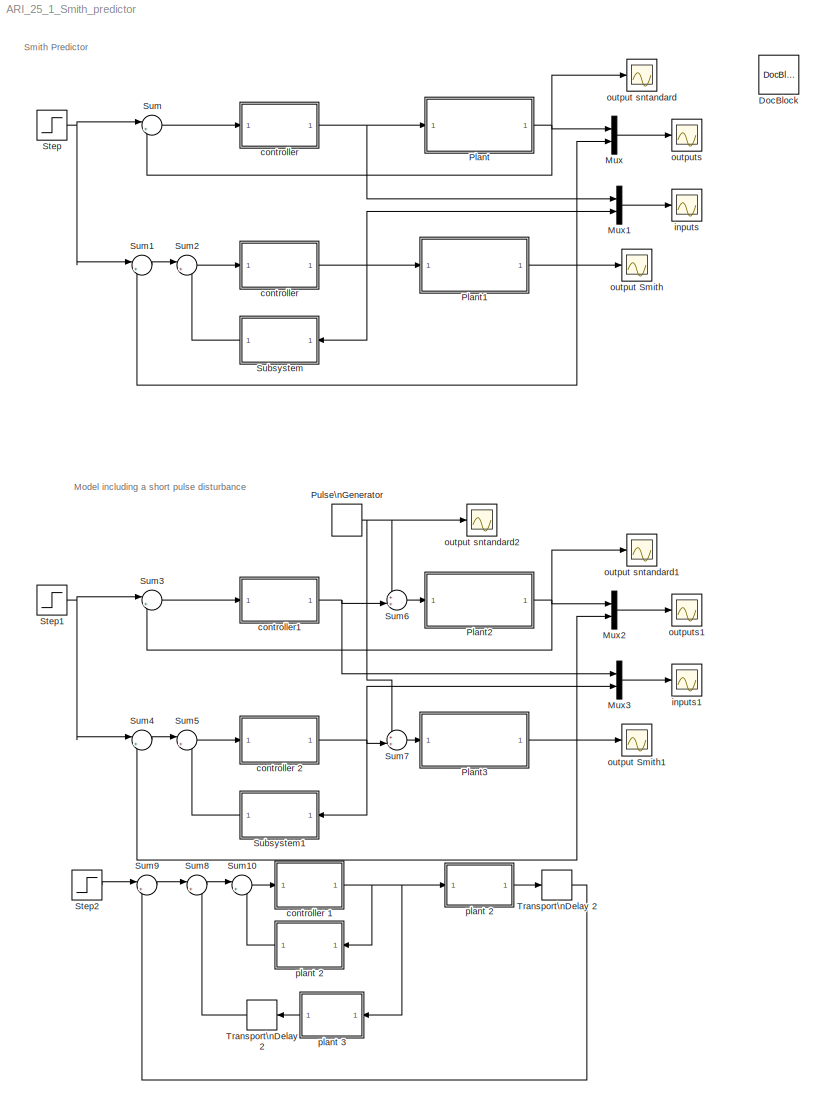
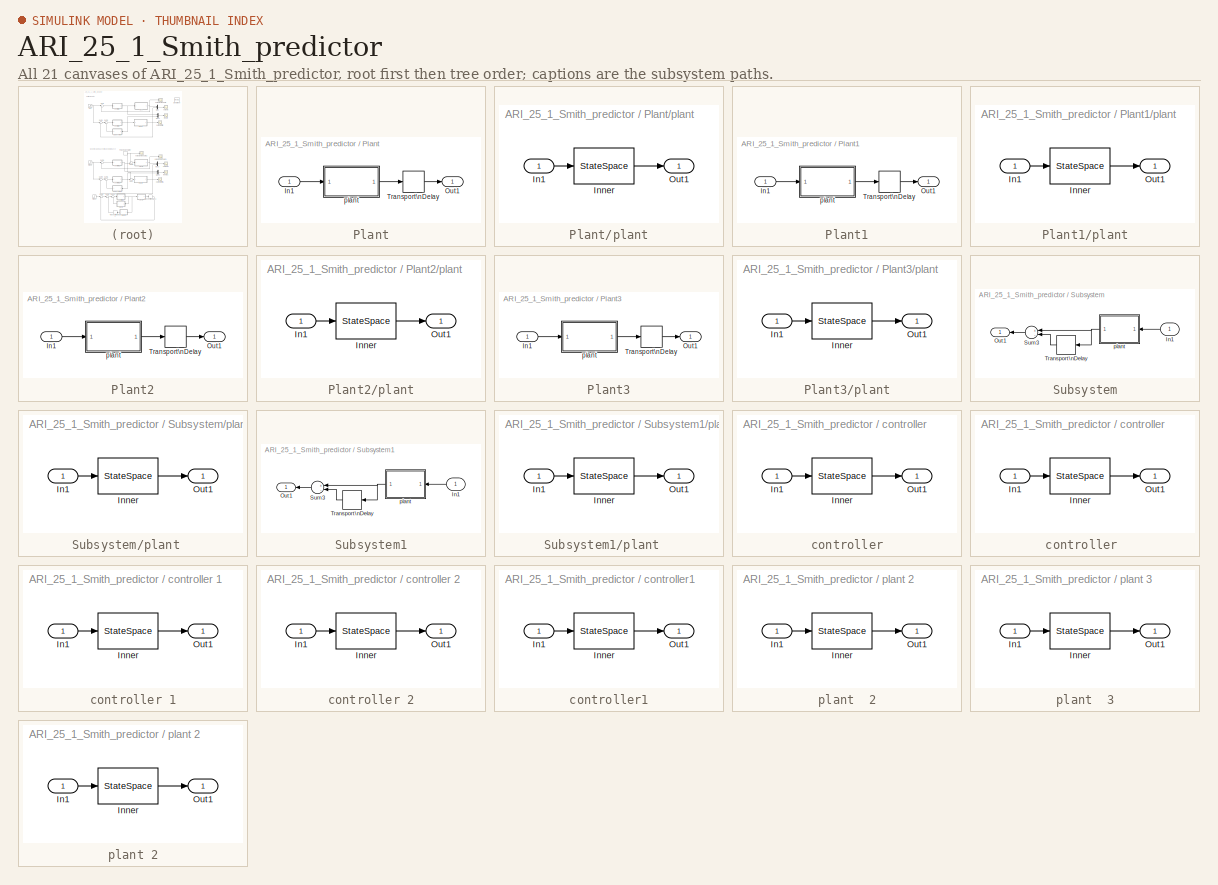
[diagram: thumbnail index - all 21 canvases of the model, root first then tree order]
MODEL ARI_25_1_Smith_predictor
KIND model
BLOCK [Reference] DocBlock  REF=simulink/Model-Wide\nUtilities/DocBlock
  DocumentType = Text
  Ports = []
  SID = 96
  SourceBlock = simulink/Model-Wide\nUtilities/DocBlock
  SourceType = DocBlock
  UserData = DataTag0
  UserDataPersistent = on
BLOCK [Mux] Mux
  DisplayOption = bar
  Inputs = 2
  Ports = [2, 1]
  SID = 1
BLOCK [Mux] Mux1
  DisplayOption = bar
  Inputs = 2
  Ports = [2, 1]
  SID = 121
BLOCK [Mux] Mux2
  DisplayOption = bar
  Inputs = 2
  Ports = [2, 1]
  SID = 136
BLOCK [Mux] Mux3
  DisplayOption = bar
  Inputs = 2
  Ports = [2, 1]
  SID = 137
BLOCK [SubSystem] Plant
  FunctionWithSeparateData = off
  MaskDisplay = disp('F(s)*exp(-s*tau)')
  MaskHideContents = off
  MaskIconFrame = on
  MaskIconOpaque = on
  MaskIconRotate = none
  MaskIconUnits = autoscale
  MaskPortRotate = default
  MinAlgLoopOccurrences = off
  Opaque = off
  Ports = [1, 1]
  PropExecContextOutsideSubsystem = off
  RTWSystemCode = Auto
  RequestExecContextInheritance = off
  SID = 74
BLOCK [Inport] Plant/In1
  IconDisplay = Port number
  SID = 76
BLOCK [Outport] Plant/Out1
  IconDisplay = Port number
  SID = 75
BLOCK [TransportDelay] Plant/Transport\nDelay
  DelayTime = tau
  Ports = [1, 1]
  SID = 20
BLOCK [SubSystem] Plant/plant
  FunctionWithSeparateData = off
  MaskCallbackString = |||
  MaskDescription = Polynomial matrix fraction description of a linear system.\n\nThis block represents a linear system defined by the polynomial matrix fraction of its transfer function.
  MaskDisplay = disp('F(s)')
  MaskEnableString = on,on,on,on
  MaskHelp = This block represents a linear system [<I>A,B,C,D</I>] defined by the polynomial matrix fraction (<I>PMF</I>) of its transfer function <I>T</I>.  \n<p>\n<b>Left Matrix Fraction</b> item of the popup menu <b>Type</b> indicates the transfer function in the form of <I>left PMF</I>:  \n<p>\n<I>T</I> = inv(<I>Q</I>) <I>P</I>.\n<p> \n<b>Right Matrix Fraction</b> item is used if the transfer function is ...<+1109ch>  <repeated x14 — deduplicated; at blocks: plant, controller, controller 1, controller 2, controller1, plant  2, plant  3, plant 2>
  MaskHideContents = off
  MaskIconFrame = on
  MaskIconOpaque = on
  MaskIconRotate = none
  MaskIconUnits = autoscale
  MaskInitialization = Label = 'xxx';\n[A,B,C,D,Label,var] = polymask2(F, fvar, length(InCon));\nupdate;\n
  MaskPortRotate = default
  MaskPromptString = PMF Object:|Initial states:|Sample time (discrete time only):|Force variable:
  MaskStyleString = edit,edit,edit,popup(No change|s   (continous time)|p   (continous time)|z      (discrete time)|q      (discrete time)|d      (discrete time)|z^-1 (discrete time))
  MaskToolTipString = on,on,on,on
  MaskTunableValueString = on,on,on,on
  MaskType = PMF Block
  MaskValueString = F|[ ]|1|No change
  MaskVariables = F=&1;InCon=@2;SampTime=@3;fvar=@4;
  MaskVisibilityString = on,on,on,on
  MinAlgLoopOccurrences = off
  Opaque = off
  Ports = [1, 1]
  PropExecContextOutsideSubsystem = off
  RTWSystemCode = Auto
  RequestExecContextInheritance = off
  SID = 42
BLOCK [Inport] Plant/plant/In1
  IconDisplay = Port number
  SID = 43
BLOCK [StateSpace] Plant/plant/Inner
  A = A
  B = B
  C = C
  D = D
  SID = 44
  X0 = InCon
BLOCK [Outport] Plant/plant/Out1
  IconDisplay = Port number
  SID = 45
BLOCK [SubSystem] Plant1
  FunctionWithSeparateData = off
  MaskDisplay = disp('F(s)*exp(-s*tau)')
  MaskHideContents = off
  MaskIconFrame = on
  MaskIconOpaque = on
  MaskIconRotate = none
  MaskIconUnits = autoscale
  MaskPortRotate = default
  MinAlgLoopOccurrences = off
  Opaque = off
  Ports = [1, 1]
  PropExecContextOutsideSubsystem = off
  RTWSystemCode = Auto
  RequestExecContextInheritance = off
  SID = 77
BLOCK [Inport] Plant1/In1
  IconDisplay = Port number
  SID = 78
BLOCK [Outport] Plant1/Out1
  IconDisplay = Port number
  SID = 84
BLOCK [TransportDelay] Plant1/Transport\nDelay
  DelayTime = tau
  Ports = [1, 1]
  SID = 79
BLOCK [SubSystem] Plant1/plant
  FunctionWithSeparateData = off
  MaskCallbackString = |||
  MaskDescription = Polynomial matrix fraction description of a linear system.\n\nThis block represents a linear system defined by the polynomial matrix fraction of its transfer function.
  MaskDisplay = disp('b/a')\n
  MaskEnableString = on,on,on,on
  MaskHideContents = off
  MaskIconFrame = on
  MaskIconOpaque = on
  MaskIconRotate = none
  MaskIconUnits = autoscale
  MaskInitialization = Label = 'xxx';\n[A,B,C,D,Label,var] = polymask2(F, fvar, length(InCon));\nupdate;\n
  MaskPortRotate = default
  MaskPromptString = PMF Object:|Initial states:|Sample time (discrete time only):|Force variable:
  MaskStyleString = edit,edit,edit,popup(No change|s   (continous time)|p   (continous time)|z      (discrete time)|q      (discrete time)|d      (discrete time)|z^-1 (discrete time))
  MaskToolTipString = on,on,on,on
  MaskTunableValueString = on,on,on,on
  MaskType = PMF Block
  MaskValueString = F|[ ]|1|No change
  MaskVariables = F=&1;InCon=@2;SampTime=@3;fvar=@4;
  MaskVisibilityString = on,on,on,on
  MinAlgLoopOccurrences = off
  Opaque = off
  Ports = [1, 1]
  PropExecContextOutsideSubsystem = off
  RTWSystemCode = Auto
  RequestExecContextInheritance = off
  SID = 80
BLOCK [Inport] Plant1/plant/In1
  IconDisplay = Port number
  SID = 81
BLOCK [StateSpace] Plant1/plant/Inner
  A = A
  B = B
  C = C
  D = D
  SID = 82
  X0 = InCon
BLOCK [Outport] Plant1/plant/Out1
  IconDisplay = Port number
  SID = 83
BLOCK [SubSystem] Plant2
  FunctionWithSeparateData = off
  MaskDisplay = disp('F(s)*exp(-s*tau)')
  MaskHideContents = off
  MaskIconFrame = on
  MaskIconOpaque = on
  MaskIconRotate = none
  MaskIconUnits = autoscale
  MaskPortRotate = default
  MinAlgLoopOccurrences = off
  Opaque = off
  Ports = [1, 1]
  PropExecContextOutsideSubsystem = off
  RTWSystemCode = Auto
  RequestExecContextInheritance = off
  SID = 138
BLOCK [Inport] Plant2/In1
  IconDisplay = Port number
  SID = 139
BLOCK [Outport] Plant2/Out1
  IconDisplay = Port number
  SID = 145
BLOCK [TransportDelay] Plant2/Transport\nDelay
  DelayTime = tau
  Ports = [1, 1]
  SID = 140
BLOCK [SubSystem] Plant2/plant
  FunctionWithSeparateData = off
  MaskCallbackString = |||
  MaskDescription = Polynomial matrix fraction description of a linear system.\n\nThis block represents a linear system defined by the polynomial matrix fraction of its transfer function.
  MaskDisplay = disp('F(s)')
  MaskEnableString = on,on,on,on
  MaskHideContents = off
  MaskIconFrame = on
  MaskIconOpaque = on
  MaskIconRotate = none
  MaskIconUnits = autoscale
  MaskInitialization = Label = 'xxx';\n[A,B,C,D,Label,var] = polymask2(F, fvar, length(InCon));\nupdate;\n
  MaskPortRotate = default
  MaskPromptString = PMF Object:|Initial states:|Sample time (discrete time only):|Force variable:
  MaskStyleString = edit,edit,edit,popup(No change|s   (continous time)|p   (continous time)|z      (discrete time)|q      (discrete time)|d      (discrete time)|z^-1 (discrete time))
  MaskToolTipString = on,on,on,on
  MaskTunableValueString = on,on,on,on
  MaskType = PMF Block
  MaskValueString = F|[ ]|1|No change
  MaskVariables = F=&1;InCon=@2;SampTime=@3;fvar=@4;
  MaskVisibilityString = on,on,on,on
  MinAlgLoopOccurrences = off
  Opaque = off
  Ports = [1, 1]
  PropExecContextOutsideSubsystem = off
  RTWSystemCode = Auto
  RequestExecContextInheritance = off
  SID = 141
BLOCK [Inport] Plant2/plant/In1
  IconDisplay = Port number
  SID = 142
BLOCK [StateSpace] Plant2/plant/Inner
  A = A
  B = B
  C = C
  D = D
  SID = 143
  X0 = InCon
BLOCK [Outport] Plant2/plant/Out1
  IconDisplay = Port number
  SID = 144
BLOCK [SubSystem] Plant3
  FunctionWithSeparateData = off
  MaskDisplay = disp('F(s)*exp(-s*tau)')
  MaskHideContents = off
  MaskIconFrame = on
  MaskIconOpaque = on
  MaskIconRotate = none
  MaskIconUnits = autoscale
  MaskPortRotate = default
  MinAlgLoopOccurrences = off
  Opaque = off
  Ports = [1, 1]
  PropExecContextOutsideSubsystem = off
  RTWSystemCode = Auto
  RequestExecContextInheritance = off
  SID = 146
BLOCK [Inport] Plant3/In1
  IconDisplay = Port number
  SID = 147
BLOCK [Outport] Plant3/Out1
  IconDisplay = Port number
  SID = 153
BLOCK [TransportDelay] Plant3/Transport\nDelay
  DelayTime = tau
  Ports = [1, 1]
  SID = 148
BLOCK [SubSystem] Plant3/plant
  FunctionWithSeparateData = off
  MaskCallbackString = |||
  MaskDescription = Polynomial matrix fraction description of a linear system.\n\nThis block represents a linear system defined by the polynomial matrix fraction of its transfer function.
  MaskDisplay = disp('b/a')\n
  MaskEnableString = on,on,on,on
  MaskHideContents = off
  MaskIconFrame = on
  MaskIconOpaque = on
  MaskIconRotate = none
  MaskIconUnits = autoscale
  MaskInitialization = Label = 'xxx';\n[A,B,C,D,Label,var] = polymask2(F, fvar, length(InCon));\nupdate;\n
  MaskPortRotate = default
  MaskPromptString = PMF Object:|Initial states:|Sample time (discrete time only):|Force variable:
  MaskStyleString = edit,edit,edit,popup(No change|s   (continous time)|p   (continous time)|z      (discrete time)|q      (discrete time)|d      (discrete time)|z^-1 (discrete time))
  MaskToolTipString = on,on,on,on
  MaskTunableValueString = on,on,on,on
  MaskType = PMF Block
  MaskValueString = F|[ ]|1|No change
  MaskVariables = F=&1;InCon=@2;SampTime=@3;fvar=@4;
  MaskVisibilityString = on,on,on,on
  MinAlgLoopOccurrences = off
  Opaque = off
  Ports = [1, 1]
  PropExecContextOutsideSubsystem = off
  RTWSystemCode = Auto
  RequestExecContextInheritance = off
  SID = 149
BLOCK [Inport] Plant3/plant/In1
  IconDisplay = Port number
  SID = 150
BLOCK [StateSpace] Plant3/plant/Inner
  A = A
  B = B
  C = C
  D = D
  SID = 151
  X0 = InCon
BLOCK [Outport] Plant3/plant/Out1
  IconDisplay = Port number
  SID = 152
BLOCK [DiscretePulseGenerator] Pulse\nGenerator
  Period = 100
  PhaseDelay = 1
  Ports = [0, 1]
  PulseType = Time based
  SID = 181
BLOCK [Step] Step
  SID = 10
  SampleTime = 0
  Time = 0
BLOCK [Step] Step1
  SID = 154
  SampleTime = 0
  Time = 0
BLOCK [Step] Step2
  SID = 11
  SampleTime = 0
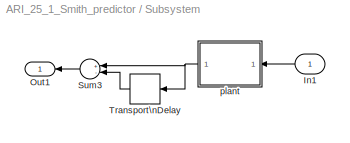
BLOCK [SubSystem] Subsystem
  FunctionWithSeparateData = off
  MaskDisplay = disp('Smith')
  MaskHideContents = off
  MaskIconFrame = on
  MaskIconOpaque = on
  MaskIconRotate = none
  MaskIconUnits = autoscale
  MaskPortRotate = default
  MinAlgLoopOccurrences = off
  Opaque = off
  Ports = [1, 1]
  PropExecContextOutsideSubsystem = off
  RTWSystemCode = Auto
  RequestExecContextInheritance = off
  SID = 93
BLOCK [Inport] Subsystem/In1
  IconDisplay = Port number
  SID = 94
BLOCK [Outport] Subsystem/Out1
  IconDisplay = Port number
  SID = 95
BLOCK [Sum] Subsystem/Sum3
  InputSameDT = off
  Inputs = +-
  OutDataTypeStr = Inherit: Inherit via internal rule
  Ports = [2, 1]
  SID = 16
  SaturateOnIntegerOverflow = off
BLOCK [TransportDelay] Subsystem/Transport\nDelay    
  DelayTime = tau
  Ports = [1, 1]
  SID = 22
BLOCK [SubSystem] Subsystem/plant  
  FunctionWithSeparateData = off
  MaskCallbackString = |||
  MaskDescription = Polynomial matrix fraction description of a linear system.\n\nThis block represents a linear system defined by the polynomial matrix fraction of its transfer function.
  MaskDisplay = disp('F(s)')\n
  MaskEnableString = on,on,on,on
  MaskHideContents = off
  MaskIconFrame = on
  MaskIconOpaque = on
  MaskIconRotate = none
  MaskIconUnits = autoscale
  MaskInitialization = Label = 'xxx';\n[A,B,C,D,Label,var] = polymask2(F, fvar, length(InCon));\nupdate;\n
  MaskPortRotate = default
  MaskPromptString = PMF Object:|Initial states:|Sample time (discrete time only):|Force variable:
  MaskStyleString = edit,edit,edit,popup(No change|s   (continous time)|p   (continous time)|z      (discrete time)|q      (discrete time)|d      (discrete time)|z^-1 (discrete time))
  MaskToolTipString = on,on,on,on
  MaskTunableValueString = on,on,on,on
  MaskType = PMF Block
  MaskValueString = F|[ ]|1|No change
  MaskVariables = F=&1;InCon=@2;SampTime=@3;fvar=@4;
  MaskVisibilityString = on,on,on,on
  MinAlgLoopOccurrences = off
  Opaque = off
  Ports = [1, 1]
  PropExecContextOutsideSubsystem = off
  RTWSystemCode = Auto
  RequestExecContextInheritance = off
  SID = 50
BLOCK [Inport] Subsystem/plant  /In1
  IconDisplay = Port number
  SID = 51
BLOCK [StateSpace] Subsystem/plant  /Inner
  A = A
  B = B
  C = C
  D = D
  SID = 52
  X0 = InCon
BLOCK [Outport] Subsystem/plant  /Out1
  IconDisplay = Port number
  SID = 53
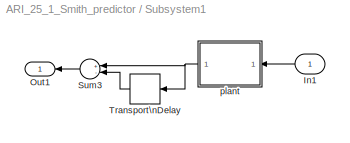
BLOCK [SubSystem] Subsystem1
  FunctionWithSeparateData = off
  MaskDisplay = disp('Smith')
  MaskHideContents = off
  MaskIconFrame = on
  MaskIconOpaque = on
  MaskIconRotate = none
  MaskIconUnits = autoscale
  MaskPortRotate = default
  MinAlgLoopOccurrences = off
  Opaque = off
  Ports = [1, 1]
  PropExecContextOutsideSubsystem = off
  RTWSystemCode = Auto
  RequestExecContextInheritance = off
  SID = 155
BLOCK [Inport] Subsystem1/In1
  IconDisplay = Port number
  SID = 156
BLOCK [Outport] Subsystem1/Out1
  IconDisplay = Port number
  SID = 163
BLOCK [Sum] Subsystem1/Sum3
  InputSameDT = off
  Inputs = +-
  OutDataTypeStr = Inherit: Inherit via internal rule
  Ports = [2, 1]
  SID = 157
  SaturateOnIntegerOverflow = off
BLOCK [TransportDelay] Subsystem1/Transport\nDelay    
  DelayTime = tau
  Ports = [1, 1]
  SID = 158
BLOCK [SubSystem] Subsystem1/plant  
  FunctionWithSeparateData = off
  MaskCallbackString = |||
  MaskDescription = Polynomial matrix fraction description of a linear system.\n\nThis block represents a linear system defined by the polynomial matrix fraction of its transfer function.
  MaskDisplay = disp('F(s)')\n
  MaskEnableString = on,on,on,on
  MaskHideContents = off
  MaskIconFrame = on
  MaskIconOpaque = on
  MaskIconRotate = none
  MaskIconUnits = autoscale
  MaskInitialization = Label = 'xxx';\n[A,B,C,D,Label,var] = polymask2(F, fvar, length(InCon));\nupdate;\n
  MaskPortRotate = default
  MaskPromptString = PMF Object:|Initial states:|Sample time (discrete time only):|Force variable:
  MaskStyleString = edit,edit,edit,popup(No change|s   (continous time)|p   (continous time)|z      (discrete time)|q      (discrete time)|d      (discrete time)|z^-1 (discrete time))
  MaskToolTipString = on,on,on,on
  MaskTunableValueString = on,on,on,on
  MaskType = PMF Block
  MaskValueString = F|[ ]|1|No change
  MaskVariables = F=&1;InCon=@2;SampTime=@3;fvar=@4;
  MaskVisibilityString = on,on,on,on
  MinAlgLoopOccurrences = off
  Opaque = off
  Ports = [1, 1]
  PropExecContextOutsideSubsystem = off
  RTWSystemCode = Auto
  RequestExecContextInheritance = off
  SID = 159
BLOCK [Inport] Subsystem1/plant  /In1
  IconDisplay = Port number
  SID = 160
BLOCK [StateSpace] Subsystem1/plant  /Inner
  A = A
  B = B
  C = C
  D = D
  SID = 161
  X0 = InCon
BLOCK [Outport] Subsystem1/plant  /Out1
  IconDisplay = Port number
  SID = 162
BLOCK [Sum] Sum
  IconShape = round
  InputSameDT = off
  Inputs = |+-
  OutDataTypeStr = Inherit: Inherit via internal rule
  Ports = [2, 1]
  SID = 12
  SaturateOnIntegerOverflow = off
BLOCK [Sum] Sum1
  IconShape = round
  InputSameDT = off
  Inputs = |+-
  OutDataTypeStr = Inherit: Inherit via internal rule
  Ports = [2, 1]
  SID = 13
  SaturateOnIntegerOverflow = off
BLOCK [Sum] Sum10
  IconShape = round
  InputSameDT = off
  Inputs = |+-
  OutDataTypeStr = Inherit: Inherit via internal rule
  Ports = [2, 1]
  SID = 14
  SaturateOnIntegerOverflow = off
BLOCK [Sum] Sum2
  IconShape = round
  InputSameDT = off
  Inputs = |+-
  OutDataTypeStr = Inherit: Inherit via internal rule
  Ports = [2, 1]
  SID = 15
  SaturateOnIntegerOverflow = off
BLOCK [Sum] Sum3
  IconShape = round
  InputSameDT = off
  Inputs = |+-
  OutDataTypeStr = Inherit: Inherit via internal rule
  Ports = [2, 1]
  SID = 164
  SaturateOnIntegerOverflow = off
BLOCK [Sum] Sum4
  IconShape = round
  InputSameDT = off
  Inputs = |+-
  OutDataTypeStr = Inherit: Inherit via internal rule
  Ports = [2, 1]
  SID = 165
  SaturateOnIntegerOverflow = off
BLOCK [Sum] Sum5
  IconShape = round
  InputSameDT = off
  Inputs = |+-
  OutDataTypeStr = Inherit: Inherit via internal rule
  Ports = [2, 1]
  SID = 166
  SaturateOnIntegerOverflow = off
BLOCK [Sum] Sum6
  IconShape = round
  InputSameDT = off
  Inputs = ++|
  OutDataTypeStr = Inherit: Inherit via internal rule
  Ports = [2, 1]
  SID = 179
  SaturateOnIntegerOverflow = off
BLOCK [Sum] Sum7
  IconShape = round
  InputSameDT = off
  Inputs = ++|
  OutDataTypeStr = Inherit: Inherit via internal rule
  Ports = [2, 1]
  SID = 183
  SaturateOnIntegerOverflow = off
BLOCK [Sum] Sum8
  IconShape = round
  InputSameDT = off
  Inputs = |+-
  OutDataTypeStr = Inherit: Inherit via internal rule
  Ports = [2, 1]
  SID = 18
  SaturateOnIntegerOverflow = off
BLOCK [Sum] Sum9
  IconShape = round
  InputSameDT = off
  Inputs = |+-
  OutDataTypeStr = Inherit: Inherit via internal rule
  Ports = [2, 1]
  SID = 19
  SaturateOnIntegerOverflow = off
BLOCK [TransportDelay] Transport\nDelay    2
  Ports = [1, 1]
  SID = 23
BLOCK [TransportDelay] Transport\nDelay  2
  Ports = [1, 1]
  SID = 24
BLOCK [SubSystem] controller
  FunctionWithSeparateData = off
  MaskCallbackString = |||
  MaskDescription = Polynomial matrix fraction description of a linear system.\n\nThis block represents a linear system defined by the polynomial matrix fraction of its transfer function.
  MaskDisplay = disp('C(s)')\n
  MaskEnableString = on,on,on,on
  MaskHideContents = off
  MaskIconFrame = on
  MaskIconOpaque = on
  MaskIconRotate = none
  MaskIconUnits = autoscale
  MaskInitialization = Label = 'xxx';\n[A,B,C,D,Label,var] = polymask2(F, fvar, length(InCon));\nupdate;\n
  MaskPortRotate = default
  MaskPromptString = PMF Object:|Initial states:|Sample time (discrete time only):|Force variable:
  MaskStyleString = edit,edit,edit,popup(No change|s   (continous time)|p   (continous time)|z      (discrete time)|q      (discrete time)|d      (discrete time)|z^-1 (discrete time))
  MaskToolTipString = on,on,on,on
  MaskTunableValueString = on,on,on,on
  MaskType = PMF Block
  MaskValueString = C|[ ]|1|No change
  MaskVariables = F=&1;InCon=@2;SampTime=@3;fvar=@4;
  MaskVisibilityString = on,on,on,on
  MinAlgLoopOccurrences = off
  Opaque = off
  Ports = [1, 1]
  PropExecContextOutsideSubsystem = off
  RTWSystemCode = Auto
  RequestExecContextInheritance = off
  SID = 26
BLOCK [SubSystem] controller 
  FunctionWithSeparateData = off
  MaskCallbackString = |||
  MaskDescription = Polynomial matrix fraction description of a linear system.\n\nThis block represents a linear system defined by the polynomial matrix fraction of its transfer function.
  MaskDisplay = disp('C(s)')\n
  MaskEnableString = on,on,on,on
  MaskHideContents = off
  MaskIconFrame = on
  MaskIconOpaque = on
  MaskIconRotate = none
  MaskIconUnits = autoscale
  MaskInitialization = Label = 'xxx';\n[A,B,C,D,Label,var] = polymask2(F, fvar, length(InCon));\nupdate;\n
  MaskPortRotate = default
  MaskPromptString = PMF Object:|Initial states:|Sample time (discrete time only):|Force variable:
  MaskStyleString = edit,edit,edit,popup(No change|s   (continous time)|p   (continous time)|z      (discrete time)|q      (discrete time)|d      (discrete time)|z^-1 (discrete time))
  MaskToolTipString = on,on,on,on
  MaskTunableValueString = on,on,on,on
  MaskType = PMF Block
  MaskValueString = C|[ ]|1|No change
  MaskVariables = F=&1;InCon=@2;SampTime=@3;fvar=@4;
  MaskVisibilityString = on,on,on,on
  MinAlgLoopOccurrences = off
  Opaque = off
  Ports = [1, 1]
  PropExecContextOutsideSubsystem = off
  RTWSystemCode = Auto
  RequestExecContextInheritance = off
  SID = 30
BLOCK [Inport] controller /In1
  IconDisplay = Port number
  SID = 31
BLOCK [StateSpace] controller /Inner
  A = A
  B = B
  C = C
  D = D
  SID = 32
  X0 = InCon
BLOCK [Outport] controller /Out1
  IconDisplay = Port number
  SID = 33
BLOCK [SubSystem] controller 1
  FunctionWithSeparateData = off
  MaskCallbackString = |||
  MaskDescription = Polynomial matrix fraction description of a linear system.\n\nThis block represents a linear system defined by the polynomial matrix fraction of its transfer function.
  MaskDisplay = disp(Label);\n
  MaskEnableString = on,on,on,on
  MaskHideContents = off
  MaskIconFrame = on
  MaskIconOpaque = on
  MaskIconRotate = none
  MaskIconUnits = autoscale
  MaskInitialization = Label = 'xxx';\n[A,B,C,D,Label,var] = polymask2(F, fvar, length(InCon));\nupdate;\n
  MaskPortRotate = default
  MaskPromptString = PMF Object:|Initial states:|Sample time (discrete time only):|Force variable:
  MaskStyleString = edit,edit,edit,popup(No change|s   (continous time)|p   (continous time)|z      (discrete time)|q      (discrete time)|d      (discrete time)|z^-1 (discrete time))
  MaskToolTipString = on,on,on,on
  MaskTunableValueString = on,on,on,on
  MaskType = PMF Block
  MaskValueString = 1/s|[ ]|1|No change
  MaskVariables = F=&1;InCon=@2;SampTime=@3;fvar=@4;
  MaskVisibilityString = on,on,on,on
  MinAlgLoopOccurrences = off
  Opaque = off
  Ports = [1, 1]
  PropExecContextOutsideSubsystem = off
  RTWSystemCode = Auto
  RequestExecContextInheritance = off
  SID = 34
BLOCK [Inport] controller 1/In1
  IconDisplay = Port number
  SID = 35
BLOCK [StateSpace] controller 1/Inner
  A = A
  B = B
  C = C
  D = D
  SID = 36
  X0 = InCon
BLOCK [Outport] controller 1/Out1
  IconDisplay = Port number
  SID = 37
BLOCK [SubSystem] controller 2
  FunctionWithSeparateData = off
  MaskCallbackString = |||
  MaskDescription = Polynomial matrix fraction description of a linear system.\n\nThis block represents a linear system defined by the polynomial matrix fraction of its transfer function.
  MaskDisplay = disp('C(s)')\n
  MaskEnableString = on,on,on,on
  MaskHideContents = off
  MaskIconFrame = on
  MaskIconOpaque = on
  MaskIconRotate = none
  MaskIconUnits = autoscale
  MaskInitialization = Label = 'xxx';\n[A,B,C,D,Label,var] = polymask2(F, fvar, length(InCon));\nupdate;\n
  MaskPortRotate = default
  MaskPromptString = PMF Object:|Initial states:|Sample time (discrete time only):|Force variable:
  MaskStyleString = edit,edit,edit,popup(No change|s   (continous time)|p   (continous time)|z      (discrete time)|q      (discrete time)|d      (discrete time)|z^-1 (discrete time))
  MaskToolTipString = on,on,on,on
  MaskTunableValueString = on,on,on,on
  MaskType = PMF Block
  MaskValueString = C|[ ]|1|No change
  MaskVariables = F=&1;InCon=@2;SampTime=@3;fvar=@4;
  MaskVisibilityString = on,on,on,on
  MinAlgLoopOccurrences = off
  Opaque = off
  Ports = [1, 1]
  PropExecContextOutsideSubsystem = off
  RTWSystemCode = Auto
  RequestExecContextInheritance = off
  SID = 171
BLOCK [Inport] controller 2/In1
  IconDisplay = Port number
  SID = 172
BLOCK [StateSpace] controller 2/Inner
  A = A
  B = B
  C = C
  D = D
  SID = 173
  X0 = InCon
BLOCK [Outport] controller 2/Out1
  IconDisplay = Port number
  SID = 174
BLOCK [Inport] controller/In1
  IconDisplay = Port number
  SID = 27
BLOCK [StateSpace] controller/Inner
  A = A
  B = B
  C = C
  D = D
  SID = 28
  X0 = InCon
BLOCK [Outport] controller/Out1
  IconDisplay = Port number
  SID = 29
BLOCK [SubSystem] controller1
  FunctionWithSeparateData = off
  MaskCallbackString = |||
  MaskDescription = Polynomial matrix fraction description of a linear system.\n\nThis block represents a linear system defined by the polynomial matrix fraction of its transfer function.
  MaskDisplay = disp('C(s)')\n
  MaskEnableString = on,on,on,on
  MaskHideContents = off
  MaskIconFrame = on
  MaskIconOpaque = on
  MaskIconRotate = none
  MaskIconUnits = autoscale
  MaskInitialization = Label = 'xxx';\n[A,B,C,D,Label,var] = polymask2(F, fvar, length(InCon));\nupdate;\n
  MaskPortRotate = default
  MaskPromptString = PMF Object:|Initial states:|Sample time (discrete time only):|Force variable:
  MaskStyleString = edit,edit,edit,popup(No change|s   (continous time)|p   (continous time)|z      (discrete time)|q      (discrete time)|d      (discrete time)|z^-1 (discrete time))
  MaskToolTipString = on,on,on,on
  MaskTunableValueString = on,on,on,on
  MaskType = PMF Block
  MaskValueString = C|[ ]|1|No change
  MaskVariables = F=&1;InCon=@2;SampTime=@3;fvar=@4;
  MaskVisibilityString = on,on,on,on
  MinAlgLoopOccurrences = off
  Opaque = off
  Ports = [1, 1]
  PropExecContextOutsideSubsystem = off
  RTWSystemCode = Auto
  RequestExecContextInheritance = off
  SID = 167
BLOCK [Inport] controller1/In1
  IconDisplay = Port number
  SID = 168
BLOCK [StateSpace] controller1/Inner
  A = A
  B = B
  C = C
  D = D
  SID = 169
  X0 = InCon
BLOCK [Outport] controller1/Out1
  IconDisplay = Port number
  SID = 170
BLOCK [Scope] inputs
  DataFormat = StructureWithTime
  Floating = off
  NumInputPorts = 1
  Ports = [1]
  SID = 122
  SampleTime = 0
  SaveName = ScopeData2
BLOCK [Scope] inputs1
  DataFormat = StructureWithTime
  Floating = off
  NumInputPorts = 1
  Ports = [1]
  SID = 175
  SampleTime = 0
  SaveName = ScopeData4
BLOCK [Scope] output Smith
  DataFormat = StructureWithTime
  Floating = off
  NumInputPorts = 1
  Ports = [1]
  SID = 4
  SampleTime = 0
  SaveName = ScopeData1
BLOCK [Scope] output Smith1
  DataFormat = StructureWithTime
  Floating = off
  NumInputPorts = 1
  Ports = [1]
  SID = 176
  SampleTime = 0
  SaveName = ScopeData5
BLOCK [Scope] output sntandard
  DataFormat = StructureWithTime
  Floating = off
  NumInputPorts = 1
  Ports = [1]
  SID = 6
  SampleTime = 0
  SaveName = ScopeData3
BLOCK [Scope] output sntandard1
  DataFormat = StructureWithTime
  Floating = off
  NumInputPorts = 1
  Ports = [1]
  SID = 177
  SampleTime = 0
  SaveName = ScopeData6
BLOCK [Scope] output sntandard2
  DataFormat = StructureWithTime
  Floating = off
  NumInputPorts = 1
  Ports = [1]
  SID = 182
  SampleTime = 0
  SaveName = ScopeData8
BLOCK [Scope] outputs
  DataFormat = StructureWithTime
  Floating = off
  NumInputPorts = 1
  Ports = [1]
  SID = 3
  SampleTime = 0
  TimeRange = 50
  YMax = 1.4e+021
  YMin = 0
BLOCK [Scope] outputs1
  DataFormat = StructureWithTime
  Floating = off
  NumInputPorts = 1
  Ports = [1]
  SID = 178
  SampleTime = 0
  SaveName = ScopeData7
  TimeRange = 50
  YMax = 1.4e+021
  YMin = 0
BLOCK [SubSystem] plant  2
  FunctionWithSeparateData = off
  MaskCallbackString = |||
  MaskDescription = Polynomial matrix fraction description of a linear system.\n\nThis block represents a linear system defined by the polynomial matrix fraction of its transfer function.
  MaskDisplay = disp(Label);\n
  MaskEnableString = on,on,on,on
  MaskHideContents = off
  MaskIconFrame = on
  MaskIconOpaque = on
  MaskIconRotate = none
  MaskIconUnits = autoscale
  MaskInitialization = Label = 'xxx';\n[A,B,C,D,Label,var] = polymask2(F, fvar, length(InCon));\nupdate;\n
  MaskPortRotate = default
  MaskPromptString = PMF Object:|Initial states:|Sample time (discrete time only):|Force variable:
  MaskStyleString = edit,edit,edit,popup(No change|s   (continous time)|p   (continous time)|z      (discrete time)|q      (discrete time)|d      (discrete time)|z^-1 (discrete time))
  MaskToolTipString = on,on,on,on
  MaskTunableValueString = on,on,on,on
  MaskType = PMF Block
  MaskValueString = rdf(1,s+1)|[ ]|1|No change
  MaskVariables = F=&1;InCon=@2;SampTime=@3;fvar=@4;
  MaskVisibilityString = on,on,on,on
  MinAlgLoopOccurrences = off
  Opaque = off
  Ports = [1, 1]
  PropExecContextOutsideSubsystem = off
  RTWSystemCode = Auto
  RequestExecContextInheritance = off
  SID = 54
BLOCK [Inport] plant  2/In1
  IconDisplay = Port number
  SID = 55
BLOCK [StateSpace] plant  2/Inner
  A = A
  B = B
  C = C
  D = D
  SID = 56
  X0 = InCon
BLOCK [Outport] plant  2/Out1
  IconDisplay = Port number
  SID = 57
BLOCK [SubSystem] plant  3
  FunctionWithSeparateData = off
  MaskCallbackString = |||
  MaskDescription = Polynomial matrix fraction description of a linear system.\n\nThis block represents a linear system defined by the polynomial matrix fraction of its transfer function.
  MaskDisplay = disp(Label);\n
  MaskEnableString = on,on,on,on
  MaskHideContents = off
  MaskIconFrame = on
  MaskIconOpaque = on
  MaskIconRotate = none
  MaskIconUnits = autoscale
  MaskInitialization = Label = 'xxx';\n[A,B,C,D,Label,var] = polymask2(F, fvar, length(InCon));\nupdate;\n
  MaskPortRotate = default
  MaskPromptString = PMF Object:|Initial states:|Sample time (discrete time only):|Force variable:
  MaskStyleString = edit,edit,edit,popup(No change|s   (continous time)|p   (continous time)|z      (discrete time)|q      (discrete time)|d      (discrete time)|z^-1 (discrete time))
  MaskToolTipString = on,on,on,on
  MaskTunableValueString = on,on,on,on
  MaskType = PMF Block
  MaskValueString = rdf(1,s+1)|[ ]|1|No change
  MaskVariables = F=&1;InCon=@2;SampTime=@3;fvar=@4;
  MaskVisibilityString = on,on,on,on
  MinAlgLoopOccurrences = off
  Opaque = off
  Ports = [1, 1]
  PropExecContextOutsideSubsystem = off
  RTWSystemCode = Auto
  RequestExecContextInheritance = off
  SID = 58
BLOCK [Inport] plant  3/In1
  IconDisplay = Port number
  SID = 59
BLOCK [StateSpace] plant  3/Inner
  A = A
  B = B
  C = C
  D = D
  SID = 60
  X0 = InCon
BLOCK [Outport] plant  3/Out1
  IconDisplay = Port number
  SID = 61
BLOCK [SubSystem] plant 2
  FunctionWithSeparateData = off
  MaskCallbackString = |||
  MaskDescription = Polynomial matrix fraction description of a linear system.\n\nThis block represents a linear system defined by the polynomial matrix fraction of its transfer function.
  MaskDisplay = droots([], [-1], 1)\n
  MaskEnableString = on,on,on,on
  MaskHideContents = off
  MaskIconFrame = on
  MaskIconOpaque = on
  MaskIconRotate = none
  MaskIconUnits = autoscale
  MaskInitialization = Label = 'xxx';\n[A,B,C,D,Label,var] = polymask2(F, fvar, length(InCon));\nupdate;\n
  MaskPortRotate = default
  MaskPromptString = PMF Object:|Initial states:|Sample time (discrete time only):|Force variable:
  MaskStyleString = edit,edit,edit,popup(No change|s   (continous time)|p   (continous time)|z      (discrete time)|q      (discrete time)|d      (discrete time)|z^-1 (discrete time))
  MaskToolTipString = on,on,on,on
  MaskTunableValueString = on,on,on,on
  MaskType = PMF Block
  MaskValueString = rdf(1,s+1)|[ ]|1|No change
  MaskVariables = F=&1;InCon=@2;SampTime=@3;fvar=@4;
  MaskVisibilityString = on,on,on,on
  MinAlgLoopOccurrences = off
  Opaque = off
  Ports = [1, 1]
  PropExecContextOutsideSubsystem = off
  RTWSystemCode = Auto
  RequestExecContextInheritance = off
  SID = 62
BLOCK [Inport] plant 2/In1
  IconDisplay = Port number
  SID = 63
BLOCK [StateSpace] plant 2/Inner
  A = A
  B = B
  C = C
  D = D
  SID = 64
  X0 = InCon
BLOCK [Outport] plant 2/Out1
  IconDisplay = Port number
  SID = 65
ANNOTATION (root): Model including a short pulse disturbance
ANNOTATION (root): Smith Predictor
LINE Mux1:1 -> inputs:1
LINE Mux2:1 -> outputs1:1
LINE Mux3:1 -> inputs1:1
LINE Mux:1 -> outputs:1
LINE Plant/In1:1 -> Plant/plant:1
LINE Plant/Transport\nDelay:1 -> Plant/Out1:1
LINE Plant/plant/In1:1 -> Plant/plant/Inner:1
LINE Plant/plant/Inner:1 -> Plant/plant/Out1:1
LINE Plant/plant:1 -> Plant/Transport\nDelay:1
LINE Plant1/In1:1 -> Plant1/plant:1
LINE Plant1/Transport\nDelay:1 -> Plant1/Out1:1
LINE Plant1/plant/In1:1 -> Plant1/plant/Inner:1
LINE Plant1/plant/Inner:1 -> Plant1/plant/Out1:1
LINE Plant1/plant:1 -> Plant1/Transport\nDelay:1
NET Plant1:1 -> Mux:2, Sum1:2, output Smith:1
LINE Plant2/In1:1 -> Plant2/plant:1
LINE Plant2/Transport\nDelay:1 -> Plant2/Out1:1
LINE Plant2/plant/In1:1 -> Plant2/plant/Inner:1
LINE Plant2/plant/Inner:1 -> Plant2/plant/Out1:1
LINE Plant2/plant:1 -> Plant2/Transport\nDelay:1
NET Plant2:1 -> Mux2:1, Sum3:2, output sntandard1:1
LINE Plant3/In1:1 -> Plant3/plant:1
LINE Plant3/Transport\nDelay:1 -> Plant3/Out1:1
LINE Plant3/plant/In1:1 -> Plant3/plant/Inner:1
LINE Plant3/plant/Inner:1 -> Plant3/plant/Out1:1
LINE Plant3/plant:1 -> Plant3/Transport\nDelay:1
NET Plant3:1 -> Mux2:2, Sum4:2, output Smith1:1
NET Plant:1 -> Mux:1, Sum:2, output sntandard:1
NET Pulse\nGenerator:1 -> Sum6:1, Sum7:1, output sntandard2:1
NET Step1:1 -> Sum3:1, Sum4:1
LINE Step2:1 -> Sum9:1
NET Step:1 -> Sum1:1, Sum:1
LINE Subsystem/In1:1 -> Subsystem/plant  :1
LINE Subsystem/Sum3:1 -> Subsystem/Out1:1
LINE Subsystem/Transport\nDelay    :1 -> Subsystem/Sum3:2
LINE Subsystem/plant  /In1:1 -> Subsystem/plant  /Inner:1
LINE Subsystem/plant  /Inner:1 -> Subsystem/plant  /Out1:1
NET Subsystem/plant  :1 -> Subsystem/Sum3:1, Subsystem/Transport\nDelay    :1
LINE Subsystem1/In1:1 -> Subsystem1/plant  :1
LINE Subsystem1/Sum3:1 -> Subsystem1/Out1:1
LINE Subsystem1/Transport\nDelay    :1 -> Subsystem1/Sum3:2
LINE Subsystem1/plant  /In1:1 -> Subsystem1/plant  /Inner:1
LINE Subsystem1/plant  /Inner:1 -> Subsystem1/plant  /Out1:1
NET Subsystem1/plant  :1 -> Subsystem1/Sum3:1, Subsystem1/Transport\nDelay    :1
LINE Subsystem1:1 -> Sum5:2
LINE Subsystem:1 -> Sum2:2
LINE Sum10:1 -> controller 1:1
LINE Sum1:1 -> Sum2:1
LINE Sum2:1 -> controller :1
LINE Sum3:1 -> controller1:1
LINE Sum4:1 -> Sum5:1
LINE Sum5:1 -> controller 2:1
LINE Sum6:1 -> Plant2:1
LINE Sum7:1 -> Plant3:1
LINE Sum8:1 -> Sum10:1
LINE Sum9:1 -> Sum8:1
LINE Sum:1 -> controller:1
LINE Transport\nDelay    2:1 -> Sum8:2
LINE Transport\nDelay  2:1 -> Sum9:2
LINE controller /In1:1 -> controller /Inner:1
LINE controller /Inner:1 -> controller /Out1:1
LINE controller 1/In1:1 -> controller 1/Inner:1
LINE controller 1/Inner:1 -> controller 1/Out1:1
NET controller 1:1 -> plant  2:1, plant  3:1, plant 2:1
LINE controller 2/In1:1 -> controller 2/Inner:1
LINE controller 2/Inner:1 -> controller 2/Out1:1
NET controller 2:1 -> Mux3:2, Subsystem1:1, Sum7:2
NET controller :1 -> Mux1:2, Plant1:1, Subsystem:1
LINE controller/In1:1 -> controller/Inner:1
LINE controller/Inner:1 -> controller/Out1:1
LINE controller1/In1:1 -> controller1/Inner:1
LINE controller1/Inner:1 -> controller1/Out1:1
NET controller1:1 -> Mux3:1, Sum6:2
NET controller:1 -> Mux1:1, Plant:1
LINE plant  2/In1:1 -> plant  2/Inner:1
LINE plant  2/Inner:1 -> plant  2/Out1:1
LINE plant  2:1 -> Sum10:2
LINE plant  3/In1:1 -> plant  3/Inner:1
LINE plant  3/Inner:1 -> plant  3/Out1:1
LINE plant  3:1 -> Transport\nDelay    2:1
LINE plant 2/In1:1 -> plant 2/Inner:1
LINE plant 2/Inner:1 -> plant 2/Out1:1
LINE plant 2:1 -> Transport\nDelay  2:1
note: NET lines group one-source signal fan-out (src -> all destinations, sorted); 1:1 wires keep LINE
